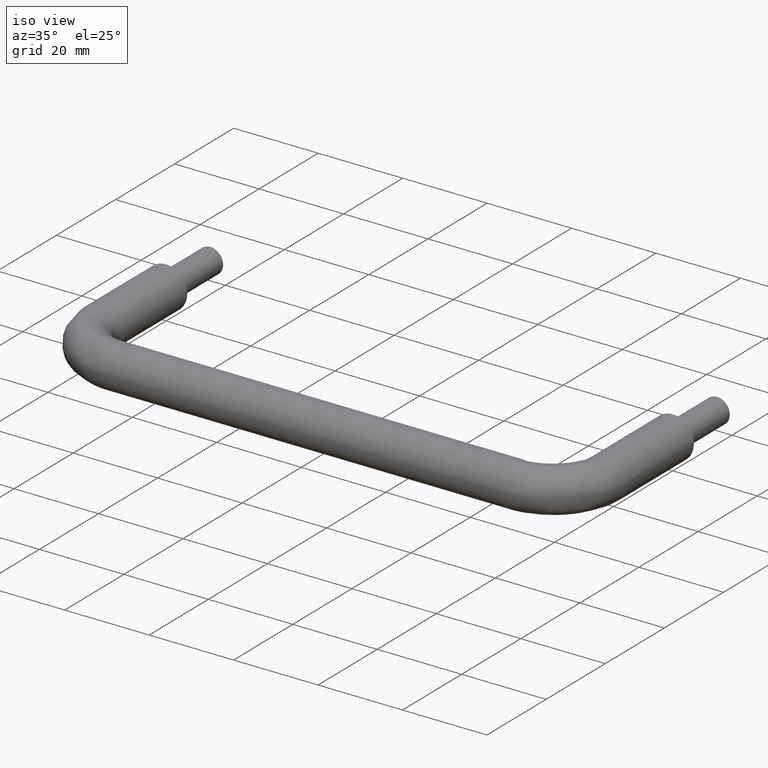
[diagram: clean part render]
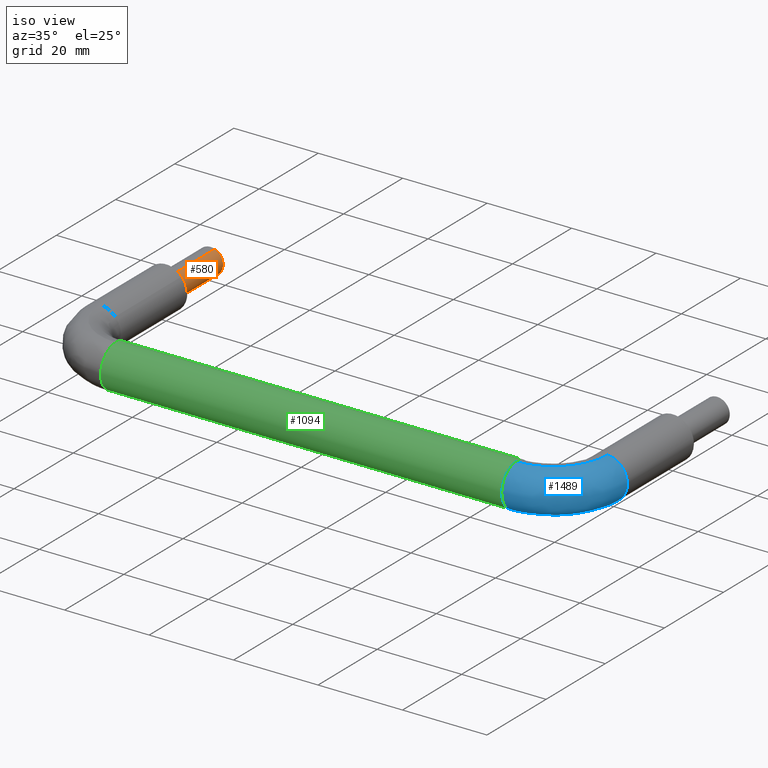
[diagram: same view with three faces highlighted in distinct colors, each labeled with its STEP entity id]
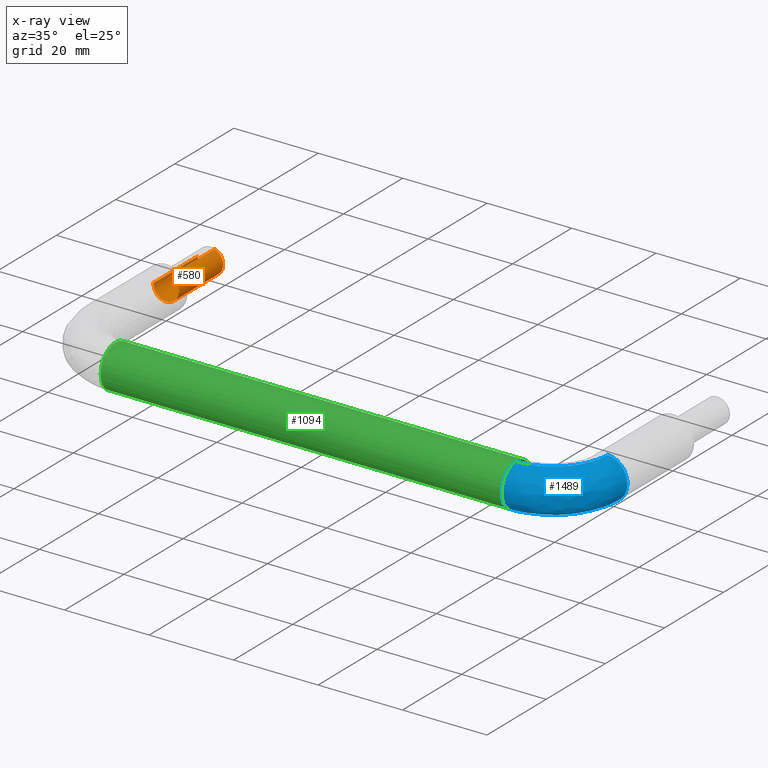
[diagram: x-ray of the same camera — body ghosted, the three highlighted faces saturated]
A machine part, iso view with three faces highlighted in distinct colors.
The next image is the same camera in x-ray (body ghosted, the three faces saturated) — at least one of them is partly hidden behind the body in this view.
Their STEP definitions:

[orange] entity #580 — the highlighted face is a freeform B-spline surface patch.
#398=CARTESIAN_POINT('',(1.054853923298531,15.0,2.808430736283467));
#399=VERTEX_POINT('',#398);
#415=CARTESIAN_POINT('',(-2.994404395329254,14.999999999763631,0.183145619499751));
#416=VERTEX_POINT('',#415);
#430=CARTESIAN_POINT('',(-2.994404395233033,2.775558E-017,0.183145619137042));
#431=VERTEX_POINT('',#430);
#432=CARTESIAN_POINT('',(-2.994404395329254,14.999999999763631,0.183145619499751));
#433=CARTESIAN_POINT('',(-2.994404395233033,2.775558E-017,0.183145619137042));
#434=QUASI_UNIFORM_CURVE('',1,(#432,#433),.UNSPECIFIED.,.F.,.U.);
#435=EDGE_CURVE('',#416,#431,#434,.T.);
#452=CARTESIAN_POINT('',(1.054853923264645,3.062603E-017,2.808430736296195));
#453=VERTEX_POINT('',#452);
#467=CARTESIAN_POINT('',(1.054853923298531,15.0,2.808430736283467));
#468=CARTESIAN_POINT('',(1.054853923264645,3.062603E-017,2.808430736296195));
#469=QUASI_UNIFORM_CURVE('',1,(#467,#468),.UNSPECIFIED.,.F.,.U.);
#470=EDGE_CURVE('',#399,#453,#469,.T.);
#475=CARTESIAN_POINT('',(-2.994404395265600,15.375000000000000,0.183145618604571));
#476=CARTESIAN_POINT('',(-3.177550013870171,15.375000000000002,-2.811258776661029));
#477=CARTESIAN_POINT('',(-0.183145618604570,15.375000000000000,-2.994404395265600));
#478=CARTESIAN_POINT('',(2.811258776661029,15.375000000000002,-3.177550013870171));
#479=CARTESIAN_POINT('',(2.994404395265601,15.375000000000000,-0.183145618604571));
#480=CARTESIAN_POINT('',(3.129711668608025,15.375000000000005,2.029108745409197));
#481=CARTESIAN_POINT('',(1.054853923174717,15.375000000000007,2.808430736329971));
#482=CARTESIAN_POINT('',(-2.994404395265600,-0.384375000000000,0.183145618604571));
#483=CARTESIAN_POINT('',(-3.177550013870171,-0.384375000000000,-2.811258776661029));
#484=CARTESIAN_POINT('',(-0.183145618604570,-0.384375000000000,-2.994404395265600));
#485=CARTESIAN_POINT('',(2.811258776661029,-0.384375000000000,-3.177550013870171));
#486=CARTESIAN_POINT('',(2.994404395265601,-0.384375000000000,-0.183145618604571));
#487=CARTESIAN_POINT('',(3.129711668608025,-0.384375000000000,2.029108745409197));
#488=CARTESIAN_POINT('',(1.054853923174717,-0.384375000000000,2.808430736329971));
#496=(BOUNDED_SURFACE()B_SPLINE_SURFACE(2,1,((#475,#482),(#476,#483),(#477,#484),(#478,#485),(#479,#486),(#480,#487),(#481,#488)),.UNSPECIFIED.,.F.,.F.,.U.)B_SPLINE_SURFACE_WITH_KNOTS((3,2,2,3),(2,2),(0.0,4.970562748477140,9.941125496954280,13.917575695735991),(0.0,15.759375000000000),.UNSPECIFIED.)GEOMETRIC_REPRESENTATION_ITEM()RATIONAL_B_SPLINE_SURFACE(((1.0,1.0),(0.707106781186548,0.707106781186548),(1.0,1.0),(0.707106781186548,0.707106781186548),(1.0,1.0),(0.765685424949238,0.765685424949238),(0.906274169979695,0.906274169979695)))REPRESENTATION_ITEM('')SURFACE());
#497=CARTESIAN_POINT('',(2.979028579091030,14.999999999999440,-0.354102703974807));
#498=VERTEX_POINT('',#497);
#499=CARTESIAN_POINT('',(2.979028579091029,14.999999999999444,-0.354102703974807));
#500=CARTESIAN_POINT('',(3.000000000000000,15.000000000000002,-0.177672358960243));
#501=CARTESIAN_POINT('',(3.0,15.0,0.0));
#502=CARTESIAN_POINT('',(3.0,14.999999999999993,2.077828786887547));
#503=CARTESIAN_POINT('',(1.054853923298531,15.000000000000004,2.808430736283467));
#511=(BOUNDED_CURVE()B_SPLINE_CURVE(2,(#499,#500,#501,#502,#503),.UNSPECIFIED.,.F.,.U.)B_SPLINE_CURVE_WITH_KNOTS((3,2,3),(0.229562473515138,0.250000000000000,0.440284170884982),.UNSPECIFIED.)CURVE()GEOMETRIC_REPRESENTATION_ITEM()RATIONAL_B_SPLINE_CURVE((0.956026754186893,0.976055948333054,1.0,0.777068226800994,0.893499554618722))REPRESENTATION_ITEM(''));
#512=EDGE_CURVE('',#498,#399,#511,.T.);
#513=ORIENTED_EDGE('',*,*,#512,.T.);
#514=ORIENTED_EDGE('',*,*,#470,.T.);
#515=CARTESIAN_POINT('',(6.123032E-016,0.0,-3.0));
#516=VERTEX_POINT('',#515);
#517=CARTESIAN_POINT('',(6.123032E-016,0.0,-3.0));
#518=CARTESIAN_POINT('',(3.0,0.0,-3.0));
#519=CARTESIAN_POINT('',(3.0,0.0,0.0));
#520=CARTESIAN_POINT('',(3.0,0.0,2.077828786941114));
#521=CARTESIAN_POINT('',(1.054853923264645,3.062603E-017,2.808430736296194));
#529=(BOUNDED_CURVE()B_SPLINE_CURVE(2,(#517,#518,#519,#520,#521),.UNSPECIFIED.,.F.,.U.)B_SPLINE_CURVE_WITH_KNOTS((3,2,3),(0.0,0.250000000000000,0.440284170888794),.UNSPECIFIED.)CURVE()GEOMETRIC_REPRESENTATION_ITEM()RATIONAL_B_SPLINE_CURVE((1.0,0.707106781186548,1.0,0.777068226796528,0.893499554623387))REPRESENTATION_ITEM(''));
#530=EDGE_CURVE('',#516,#453,#529,.T.);
#531=ORIENTED_EDGE('',*,*,#530,.F.);
#532=CARTESIAN_POINT('',(-2.994404395233033,2.775558E-017,0.183145619137042));
#533=CARTESIAN_POINT('',(-3.0,0.0,0.091658290429731));
#534=CARTESIAN_POINT('',(-3.0,0.0,0.0));
#535=CARTESIAN_POINT('',(-2.999999999999999,0.0,-3.0));
#536=CARTESIAN_POINT('',(6.123032E-016,0.0,-3.0));
#544=(BOUNDED_CURVE()B_SPLINE_CURVE(2,(#532,#533,#534,#535,#536),.UNSPECIFIED.,.F.,.U.)B_SPLINE_CURVE_WITH_KNOTS((3,2,3),(0.739332962180603,0.750000000000000,1.0),.UNSPECIFIED.)CURVE()GEOMETRIC_REPRESENTATION_ITEM()RATIONAL_B_SPLINE_CURVE((0.976072041541684,0.987502787831488,1.0,0.707106781186548,1.0))REPRESENTATION_ITEM(''));
#545=EDGE_CURVE('',#431,#516,#544,.T.);
#546=ORIENTED_EDGE('',*,*,#545,.F.);
#547=ORIENTED_EDGE('',*,*,#435,.F.);
#548=CARTESIAN_POINT('',(6.123032E-016,15.0,-3.0));
#549=VERTEX_POINT('',#548);
#550=CARTESIAN_POINT('',(-2.994404395329254,14.999999999763631,0.183145619499751));
#551=CARTESIAN_POINT('',(-3.000000000000000,15.000000000000004,0.091658291676676));
#552=CARTESIAN_POINT('',(-3.0,15.0,0.0));
#553=CARTESIAN_POINT('',(-2.999999999999999,14.999999999999995,-3.0));
#554=CARTESIAN_POINT('',(6.123032E-016,15.0,-3.0));
#562=(BOUNDED_CURVE()B_SPLINE_CURVE(2,(#550,#551,#552,#553,#554),.UNSPECIFIED.,.F.,.U.)B_SPLINE_CURVE_WITH_KNOTS((3,2,3),(0.739332962037299,0.750000000000000,1.0),.UNSPECIFIED.)CURVE()GEOMETRIC_REPRESENTATION_ITEM()RATIONAL_B_SPLINE_CURVE((0.976072041234557,0.987502787663597,1.0,0.707106781186548,1.0))REPRESENTATION_ITEM(''));
#563=EDGE_CURVE('',#416,#549,#562,.T.);
#564=ORIENTED_EDGE('',*,*,#563,.T.);
#565=CARTESIAN_POINT('',(6.123032E-016,15.0,-3.0));
#566=CARTESIAN_POINT('',(2.664523577846058,15.000000000000004,-2.999999999999999));
#567=CARTESIAN_POINT('',(2.979028579091030,14.999999999999437,-0.354102703974808));
#575=(BOUNDED_CURVE()B_SPLINE_CURVE(2,(#565,#566,#567),.UNSPECIFIED.,.F.,.U.)B_SPLINE_CURVE_WITH_KNOTS((3,3),(0.0,0.229562473515138),.UNSPECIFIED.)CURVE()GEOMETRIC_REPRESENTATION_ITEM()RATIONAL_B_SPLINE_CURVE((1.0,0.731050832853494,0.956026754186893))REPRESENTATION_ITEM(''));
#576=EDGE_CURVE('',#549,#498,#575,.T.);
#577=ORIENTED_EDGE('',*,*,#576,.T.);
#578=EDGE_LOOP('',(#513,#514,#531,#546,#547,#564,#577));
#579=FACE_OUTER_BOUND('',#578,.T.);
#580=ADVANCED_FACE('',(#579),#496,.T.);

[blue] entity #1489 — the highlighted face is a freeform B-spline surface patch.
#726=CARTESIAN_POINT('',(123.294846396518910,-22.499999999999961,-3.760849268894289));
#727=VERTEX_POINT('',#726);
#728=CARTESIAN_POINT('',(119.937169799793200,-22.500000000606040,-4.999605221009151));
#729=VERTEX_POINT('',#728);
#730=CARTESIAN_POINT('',(123.294846396518930,-22.499999999999957,-3.760849268894289));
#731=CARTESIAN_POINT('',(121.880437783707560,-22.499999999999996,-5.0));
#732=CARTESIAN_POINT('',(120.0,-22.500000000000000,-5.0));
#733=CARTESIAN_POINT('',(119.968583659250430,-22.500000000000000,-5.000000000000001));
#734=CARTESIAN_POINT('',(119.937169799793270,-22.500000000606033,-4.999605221009151));
#742=(BOUNDED_CURVE()B_SPLINE_CURVE(2,(#730,#731,#732,#733,#734),.UNSPECIFIED.,.F.,.U.)B_SPLINE_CURVE_WITH_KNOTS((3,2,3),(0.134954778888341,0.250000000000000,0.252215704133851),.UNSPECIFIED.)CURVE()GEOMETRIC_REPRESENTATION_ITEM()RATIONAL_B_SPLINE_CURVE((0.854482191287481,0.865216139518003,1.0,0.997404141137193,0.994854295516091))REPRESENTATION_ITEM(''));
#743=EDGE_CURVE('',#727,#729,#742,.T.);
#844=CARTESIAN_POINT('',(125.0,-22.500000000000000,0.0));
#845=VERTEX_POINT('',#844);
#846=CARTESIAN_POINT('',(125.0,-22.500000000000000,0.0));
#847=CARTESIAN_POINT('',(125.000000000000010,-22.500000000000000,-2.266979452731507));
#848=CARTESIAN_POINT('',(123.294846396518930,-22.499999999999957,-3.760849268894289));
#856=(BOUNDED_CURVE()B_SPLINE_CURVE(2,(#846,#847,#848),.UNSPECIFIED.,.F.,.U.)B_SPLINE_CURVE_WITH_KNOTS((3,3),(0.0,0.134954778888341),.UNSPECIFIED.)CURVE()GEOMETRIC_REPRESENTATION_ITEM()RATIONAL_B_SPLINE_CURVE((1.0,0.841890641668545,0.854482191287481))REPRESENTATION_ITEM(''));
#857=EDGE_CURVE('',#845,#727,#856,.T.);
#891=CARTESIAN_POINT('',(120.348666259219400,-22.500000000209219,4.987828369108341));
#892=VERTEX_POINT('',#891);
#908=CARTESIAN_POINT('',(120.348666259219370,-22.500000000209212,4.987828369108342));
#909=CARTESIAN_POINT('',(124.999999999999990,-22.500000000000000,4.662684233817658));
#910=CARTESIAN_POINT('',(125.0,-22.500000000000000,0.0));
#918=(BOUNDED_CURVE()B_SPLINE_CURVE(2,(#908,#909,#910),.UNSPECIFIED.,.F.,.U.)B_SPLINE_CURVE_WITH_KNOTS((3,3),(0.762166313557421,1.0),.UNSPECIFIED.)CURVE()GEOMETRIC_REPRESENTATION_ITEM()RATIONAL_B_SPLINE_CURVE((0.972879876191303,0.721360504142255,1.0))REPRESENTATION_ITEM(''));
#919=EDGE_CURVE('',#892,#845,#918,.T.);
#952=CARTESIAN_POINT('',(107.500000001461900,-35.348666263710392,4.987828368794403));
#953=VERTEX_POINT('',#952);
#1047=CARTESIAN_POINT('',(107.500000001026810,-34.937169798926647,-4.999605220998261));
#1048=VERTEX_POINT('',#1047);
#1062=CARTESIAN_POINT('',(107.500000000000000,-40.0,0.0));
#1063=VERTEX_POINT('',#1062);
#1064=CARTESIAN_POINT('',(107.500000000000000,-40.0,0.0));
#1065=CARTESIAN_POINT('',(107.500000000000000,-39.999999999999993,-5.000000000000001));
#1066=CARTESIAN_POINT('',(107.500000000000000,-35.0,-5.0));
#1067=CARTESIAN_POINT('',(107.500000000000040,-34.968583658383764,-5.000000000000001));
#1068=CARTESIAN_POINT('',(107.500000001026790,-34.937169798926654,-4.999605220998261));
#1076=(BOUNDED_CURVE()B_SPLINE_CURVE(2,(#1064,#1065,#1066,#1067,#1068),.UNSPECIFIED.,.F.,.U.)B_SPLINE_CURVE_WITH_KNOTS((3,2,3),(0.0,0.250000000000000,0.252215704194816),.UNSPECIFIED.)CURVE()GEOMETRIC_REPRESENTATION_ITEM()RATIONAL_B_SPLINE_CURVE((1.0,0.707106781186548,1.0,0.997404141065767,0.994854295375772))REPRESENTATION_ITEM(''));
#1077=EDGE_CURVE('',#1063,#1048,#1076,.T.);
#1079=CARTESIAN_POINT('',(107.500000001461870,-35.348666263710385,4.987828368794403));
#1080=CARTESIAN_POINT('',(107.499999999999990,-40.000000000000007,4.662684225400630));
#1081=CARTESIAN_POINT('',(107.500000000000000,-40.0,0.0));
#1089=(BOUNDED_CURVE()B_SPLINE_CURVE(2,(#1079,#1080,#1081),.UNSPECIFIED.,.F.,.U.)B_SPLINE_CURVE_WITH_KNOTS((3,3),(0.762166313867126,1.0),.UNSPECIFIED.)CURVE()GEOMETRIC_REPRESENTATION_ITEM()RATIONAL_B_SPLINE_CURVE((0.972879875536250,0.721360504505097,1.0))REPRESENTATION_ITEM(''));
#1090=EDGE_CURVE('',#953,#1063,#1089,.T.);
#1418=CARTESIAN_POINT('',(107.500000001026780,-34.937169798926647,-4.999605220998261));
#1419=CARTESIAN_POINT('',(119.937169799371160,-34.937169798529624,-4.999605221019079));
#1420=CARTESIAN_POINT('',(119.937169799793220,-22.500000000606036,-4.999605221009150));
#1428=(BOUNDED_CURVE()B_SPLINE_CURVE(2,(#1418,#1419,#1420),.UNSPECIFIED.,.F.,.U.)B_SPLINE_CURVE_WITH_KNOTS((3,3),(-1.734750791486827,-0.265249208442865),.UNSPECIFIED.)CURVE()GEOMETRIC_REPRESENTATION_ITEM()RATIONAL_B_SPLINE_CURVE((0.889029723515637,0.628638946265650,0.889029723540554))REPRESENTATION_ITEM(''));
#1429=EDGE_CURVE('',#1048,#729,#1428,.T.);
#1435=CARTESIAN_POINT('',(107.500000001461860,-35.348666263710378,4.987828368794403));
#1436=CARTESIAN_POINT('',(120.348666257458760,-35.348666254953478,4.987828369202159));
#1437=CARTESIAN_POINT('',(120.348666259219370,-22.500000000209216,4.987828369108343));
#1445=(BOUNDED_CURVE()B_SPLINE_CURVE(2,(#1435,#1436,#1437),.UNSPECIFIED.,.F.,.U.)B_SPLINE_CURVE_WITH_KNOTS((3,3),(-1.734750791421955,-0.265249208375438),.UNSPECIFIED.)CURVE()GEOMETRIC_REPRESENTATION_ITEM()RATIONAL_B_SPLINE_CURVE((0.869031711793350,0.614498216579967,0.869031711863537))REPRESENTATION_ITEM(''));
#1446=EDGE_CURVE('',#953,#892,#1445,.T.);
#1451=CARTESIAN_POINT('',(106.640100083998020,-34.836126257264425,-4.998711581351103));
#1452=CARTESIAN_POINT('',(120.824889116633360,-35.824888745852469,-4.998711581351105));
#1453=CARTESIAN_POINT('',(119.836126233336630,-21.640099740730648,-4.998711581351103));
#1454=CARTESIAN_POINT('',(106.637635002415640,-34.871490323557559,-4.999157081099925));
#1455=CARTESIAN_POINT('',(120.863087676881700,-35.863087305037901,-4.999157081099926));
#1456=CARTESIAN_POINT('',(119.871490299561160,-21.637634658164199,-4.999157081099924));
#1457=CARTESIAN_POINT('',(106.287497276693700,-39.894566976500130,-5.062435420435841));
#1458=CARTESIAN_POINT('',(126.288773019992930,-41.288772497173028,-5.062435420435840));
#1459=CARTESIAN_POINT('',(124.894566942760820,-21.287496792669234,-5.062435420435842));
#1460=CARTESIAN_POINT('',(106.283128246996160,-39.957245087019295,-0.062830199416764));
#1461=CARTESIAN_POINT('',(126.356474894575830,-41.356474369872032,-0.062830199416764));
#1462=CARTESIAN_POINT('',(124.957245053158370,-21.283127761227600,-0.062830199416764));
#1463=CARTESIAN_POINT('',(106.279002338772270,-40.016435376294552,4.658564189198486));
#1464=CARTESIAN_POINT('',(126.420409392725900,-41.420408866243044,4.658564189198486));
#1465=CARTESIAN_POINT('',(125.016435342318860,-21.279001851356654,4.658564189198486));
#1466=CARTESIAN_POINT('',(106.609048624357880,-35.281590571732529,4.990349160761997));
#1467=CARTESIAN_POINT('',(121.306058202610320,-36.306057818440344,4.990349160761996));
#1468=CARTESIAN_POINT('',(120.281590546940710,-21.609048268694952,4.990349160761997));
#1469=CARTESIAN_POINT('',(106.611542426592110,-35.245814478899511,4.992856100362599));
#1470=CARTESIAN_POINT('',(121.267414591148750,-36.267414208054092,4.992856100362599));
#1471=CARTESIAN_POINT('',(120.245814454177080,-21.611542071924685,4.992856100362599));
#1479=(BOUNDED_SURFACE()B_SPLINE_SURFACE(2,2,((#1451,#1454,#1457,#1460,#1463,#1466,#1469),(#1452,#1455,#1458,#1461,#1464,#1467,#1470),(#1453,#1456,#1459,#1462,#1465,#1468,#1471)),.UNSPECIFIED.,.F.,.F.,.U.)B_SPLINE_SURFACE_WITH_KNOTS((3,3),(3,1,2,1,3),(0.0,31.890824110817530),(0.0,0.083810702488793,8.368081949950689,16.320982347514111,16.404008296420759),.UNSPECIFIED.)GEOMETRIC_REPRESENTATION_ITEM()RATIONAL_B_SPLINE_SURFACE(((0.921772624035560,0.919057359638246,0.647951709431553,0.916342095240933,0.658687324863928,0.898204366664749,0.900679019718726),(0.604890217368078,0.603108393056230,0.425202094466791,0.601326568744382,0.432247073437895,0.589424138258892,0.591048067397921),(0.921772635721267,0.919057371289531,0.647951717645915,0.916342106857795,0.658687333214390,0.898204378051672,0.900679031137021)))REPRESENTATION_ITEM('')SURFACE());
#1480=ORIENTED_EDGE('',*,*,#919,.F.);
#1481=ORIENTED_EDGE('',*,*,#1446,.F.);
#1482=ORIENTED_EDGE('',*,*,#1090,.T.);
#1483=ORIENTED_EDGE('',*,*,#1077,.T.);
#1484=ORIENTED_EDGE('',*,*,#1429,.T.);
#1485=ORIENTED_EDGE('',*,*,#743,.F.);
#1486=ORIENTED_EDGE('',*,*,#857,.F.);
#1487=EDGE_LOOP('',(#1480,#1481,#1482,#1483,#1484,#1485,#1486));
#1488=FACE_OUTER_BOUND('',#1487,.T.);
#1489=ADVANCED_FACE('',(#1488),#1479,.T.);

[green] entity #1094 — the highlighted face is a freeform B-spline surface patch.
#924=CARTESIAN_POINT('',(10.124999941214483,-30.521972536820851,2.224245948408881));
#925=CARTESIAN_POINT('',(10.124999941214483,-30.856101220587441,2.896940181352409));
#926=CARTESIAN_POINT('',(10.124999941214480,-31.373128144938558,3.441772878468769));
#927=CARTESIAN_POINT('',(10.124999941214483,-34.814901023407330,7.068644733530205));
#928=CARTESIAN_POINT('',(10.124999941214480,-38.441772878468768,3.626871855061437));
#929=CARTESIAN_POINT('',(10.124999941214483,-42.068644733530206,0.185098976592668));
#930=CARTESIAN_POINT('',(10.124999941214480,-38.626871855061438,-3.441772878468769));
#931=CARTESIAN_POINT('',(10.124999941214483,-35.185098976592663,-7.068644733530205));
#932=CARTESIAN_POINT('',(10.124999941214480,-31.558227121531232,-3.626871855061437));
#933=CARTESIAN_POINT('',(109.934375002968050,-30.521972536820840,2.224245948408881));
#934=CARTESIAN_POINT('',(109.934375002968100,-30.856101220587430,2.896940181352409));
#935=CARTESIAN_POINT('',(109.934375002968100,-31.373128144938558,3.441772878468769));
#936=CARTESIAN_POINT('',(109.934375002968050,-34.814901023407316,7.068644733530205));
#937=CARTESIAN_POINT('',(109.934375002968100,-38.441772878468761,3.626871855061437));
#938=CARTESIAN_POINT('',(109.934375002968050,-42.068644733530206,0.185098976592668));
#939=CARTESIAN_POINT('',(109.934375002968100,-38.626871855061431,-3.441772878468769));
#940=CARTESIAN_POINT('',(109.934375002968050,-35.185098976592663,-7.068644733530205));
#941=CARTESIAN_POINT('',(109.934375002968100,-31.558227121531232,-3.626871855061437));
#949=(BOUNDED_SURFACE()B_SPLINE_SURFACE(2,1,((#924,#933),(#925,#934),(#926,#935),(#927,#936),(#928,#937),(#929,#938),(#930,#939),(#931,#940),(#932,#941)),.UNSPECIFIED.,.F.,.F.,.U.)B_SPLINE_SURFACE_WITH_KNOTS((3,2,2,2,3),(2,2),(0.0,1.656854249492380,9.941125496954278,18.225396744416180,26.509667991878079),(0.0,99.809375061753585),.UNSPECIFIED.)GEOMETRIC_REPRESENTATION_ITEM()RATIONAL_B_SPLINE_SURFACE(((0.906274169979695,0.906274169979695),(0.941421356237309,0.941421356237309),(1.0,1.0),(0.707106781186548,0.707106781186548),(1.0,1.0),(0.707106781186548,0.707106781186548),(1.0,1.0),(0.707106781186548,0.707106781186548),(1.0,1.0)))REPRESENTATION_ITEM('')SURFACE());
#950=CARTESIAN_POINT('',(107.500000000000000,-30.521972536837890,2.224245948443190));
#951=VERTEX_POINT('',#950);
#952=CARTESIAN_POINT('',(107.500000001461900,-35.348666263710392,4.987828368794403));
#953=VERTEX_POINT('',#952);
#954=CARTESIAN_POINT('',(107.500000000000000,-30.521972536837890,2.224245948443190));
#955=CARTESIAN_POINT('',(107.500000000000000,-31.900695591566350,4.999999999999998));
#956=CARTESIAN_POINT('',(107.500000000000000,-35.0,5.0));
#957=CARTESIAN_POINT('',(107.499999999999960,-35.174545585228110,5.0));
#958=CARTESIAN_POINT('',(107.500000001461910,-35.348666263710385,4.987828368794403));
#966=(BOUNDED_CURVE()B_SPLINE_CURVE(2,(#954,#955,#956,#957,#958),.UNSPECIFIED.,.F.,.U.)B_SPLINE_CURVE_WITH_KNOTS((3,2,3),(0.575619190624772,0.750000000000000,0.762166313867127),.UNSPECIFIED.)CURVE()GEOMETRIC_REPRESENTATION_ITEM()RATIONAL_B_SPLINE_CURVE((0.876408099966359,0.795700173771178,1.0,0.985746276681450,0.972879875536249))REPRESENTATION_ITEM(''));
#967=EDGE_CURVE('',#951,#953,#966,.T.);
#968=ORIENTED_EDGE('',*,*,#967,.F.);
#969=CARTESIAN_POINT('',(12.499999999949400,-30.521972536863860,2.224245948429610));
#970=VERTEX_POINT('',#969);
#971=CARTESIAN_POINT('',(12.499999999949400,-30.521972536863860,2.224245948429610));
#972=CARTESIAN_POINT('',(107.500000000000000,-30.521972536837890,2.224245948443190));
#973=QUASI_UNIFORM_CURVE('',1,(#971,#972),.UNSPECIFIED.,.F.,.U.);
#974=EDGE_CURVE('',#970,#951,#973,.T.);
#975=ORIENTED_EDGE('',*,*,#974,.F.);
#976=CARTESIAN_POINT('',(12.499999999521330,-34.937169799960493,4.999605221011253));
#977=VERTEX_POINT('',#976);
#978=CARTESIAN_POINT('',(12.499999999949399,-30.521972536863856,2.224245948429611));
#979=CARTESIAN_POINT('',(12.499999999817589,-31.881425326504711,4.961203581291151));
#980=CARTESIAN_POINT('',(12.499999999521334,-34.937169799960486,4.999605221011253));
#988=(BOUNDED_CURVE()B_SPLINE_CURVE(2,(#978,#979,#980),.UNSPECIFIED.,.F.,.U.)B_SPLINE_CURVE_WITH_KNOTS((3,3),(0.575619190623804,0.747784295877918),.UNSPECIFIED.)CURVE()GEOMETRIC_REPRESENTATION_ITEM()RATIONAL_B_SPLINE_CURVE((0.876408099967255,0.796725658657972,0.994854295543177))REPRESENTATION_ITEM(''));
#989=EDGE_CURVE('',#970,#977,#988,.T.);
#990=ORIENTED_EDGE('',*,*,#989,.T.);
#991=CARTESIAN_POINT('',(12.500000000000000,-40.0,0.0));
#992=VERTEX_POINT('',#991);
#993=CARTESIAN_POINT('',(12.499999999521329,-34.937169799960486,4.999605221011254));
#994=CARTESIAN_POINT('',(12.500000000000002,-34.968583659417725,5.0));
#995=CARTESIAN_POINT('',(12.500000000000000,-35.0,5.0));
#996=CARTESIAN_POINT('',(12.500000000000000,-39.999999999999993,5.000000000000001));
#997=CARTESIAN_POINT('',(12.500000000000000,-40.0,0.0));
#1005=(BOUNDED_CURVE()B_SPLINE_CURVE(2,(#993,#994,#995,#996,#997),.UNSPECIFIED.,.F.,.U.)B_SPLINE_CURVE_WITH_KNOTS((3,2,3),(0.747784295877917,0.750000000000000,1.0),.UNSPECIFIED.)CURVE()GEOMETRIC_REPRESENTATION_ITEM()RATIONAL_B_SPLINE_CURVE((0.994854295543175,0.997404141150979,1.0,0.707106781186548,1.0))REPRESENTATION_ITEM(''));
#1006=EDGE_CURVE('',#977,#992,#1005,.T.);
#1007=ORIENTED_EDGE('',*,*,#1006,.T.);
#1008=CARTESIAN_POINT('',(12.499999942683930,-35.348666308206170,-4.987828365683995));
#1009=VERTEX_POINT('',#1008);
#1010=CARTESIAN_POINT('',(12.500000000000000,-40.0,0.0));
#1011=CARTESIAN_POINT('',(12.500000000000000,-40.0,-4.662684142007196));
#1012=CARTESIAN_POINT('',(12.499999942683930,-35.348666308206170,-4.987828365683995));
#1020=(BOUNDED_CURVE()B_SPLINE_CURVE(2,(#1010,#1011,#1012),.UNSPECIFIED.,.F.,.U.)B_SPLINE_CURVE_WITH_KNOTS((3,3),(0.0,0.237833683064406),.UNSPECIFIED.)CURVE()GEOMETRIC_REPRESENTATION_ITEM()RATIONAL_B_SPLINE_CURVE((1.0,0.721360508100031,0.972879869046176))REPRESENTATION_ITEM(''));
#1021=EDGE_CURVE('',#992,#1009,#1020,.T.);
#1022=ORIENTED_EDGE('',*,*,#1021,.T.);
#1023=CARTESIAN_POINT('',(12.500000000000000,-31.558228442135000,-3.626873108266699));
#1024=VERTEX_POINT('',#1023);
#1025=CARTESIAN_POINT('',(12.499999942683939,-35.348666308206170,-4.987828365683995));
#1026=CARTESIAN_POINT('',(12.500000000000002,-35.174545629886815,-4.999999999999999));
#1027=CARTESIAN_POINT('',(12.500000000000000,-35.0,-5.0));
#1028=CARTESIAN_POINT('',(12.500000000000005,-33.005203325312003,-5.0));
#1029=CARTESIAN_POINT('',(12.500000000000000,-31.558228442135000,-3.626873108266699));
#1037=(BOUNDED_CURVE()B_SPLINE_CURVE(2,(#1025,#1026,#1027,#1028,#1029),.UNSPECIFIED.,.F.,.U.)B_SPLINE_CURVE_WITH_KNOTS((3,2,3),(0.237833683064406,0.250000000000000,0.371049471708747),.UNSPECIFIED.)CURVE()GEOMETRIC_REPRESENTATION_ITEM()RATIONAL_B_SPLINE_CURVE((0.972879869046176,0.985746273086517,1.0,0.858181722382228,0.853699665438662))REPRESENTATION_ITEM(''));
#1038=EDGE_CURVE('',#1009,#1024,#1037,.T.);
#1039=ORIENTED_EDGE('',*,*,#1038,.T.);
#1040=CARTESIAN_POINT('',(107.500000000324110,-31.558227913072550,-3.626872605960986));
#1041=VERTEX_POINT('',#1040);
#1042=CARTESIAN_POINT('',(12.500000000000000,-31.558228442135000,-3.626873108266699));
#1043=CARTESIAN_POINT('',(107.500000000324110,-31.558227913072550,-3.626872605960986));
#1044=QUASI_UNIFORM_CURVE('',1,(#1042,#1043),.UNSPECIFIED.,.F.,.U.);
#1045=EDGE_CURVE('',#1024,#1041,#1044,.T.);
#1046=ORIENTED_EDGE('',*,*,#1045,.T.);
#1047=CARTESIAN_POINT('',(107.500000001026810,-34.937169798926647,-4.999605220998261));
#1048=VERTEX_POINT('',#1047);
#1049=CARTESIAN_POINT('',(107.500000001026790,-34.937169798926654,-4.999605220998261));
#1050=CARTESIAN_POINT('',(107.500000000619520,-32.978853110185419,-4.974994990965148));
#1051=CARTESIAN_POINT('',(107.500000000324090,-31.558227913072557,-3.626872605960986));
#1059=(BOUNDED_CURVE()B_SPLINE_CURVE(2,(#1049,#1050,#1051),.UNSPECIFIED.,.F.,.U.)B_SPLINE_CURVE_WITH_KNOTS((3,3),(0.252215704194816,0.371049493739702),.UNSPECIFIED.)CURVE()GEOMETRIC_REPRESENTATION_ITEM()RATIONAL_B_SPLINE_CURVE((0.994854295375772,0.858099656915595,0.853699663807202))REPRESENTATION_ITEM(''));
#1060=EDGE_CURVE('',#1048,#1041,#1059,.T.);
#1061=ORIENTED_EDGE('',*,*,#1060,.F.);
#1062=CARTESIAN_POINT('',(107.500000000000000,-40.0,0.0));
#1063=VERTEX_POINT('',#1062);
#1064=CARTESIAN_POINT('',(107.500000000000000,-40.0,0.0));
#1065=CARTESIAN_POINT('',(107.500000000000000,-39.999999999999993,-5.000000000000001));
#1066=CARTESIAN_POINT('',(107.500000000000000,-35.0,-5.0));
#1067=CARTESIAN_POINT('',(107.500000000000040,-34.968583658383764,-5.000000000000001));
#1068=CARTESIAN_POINT('',(107.500000001026790,-34.937169798926654,-4.999605220998261));
#1076=(BOUNDED_CURVE()B_SPLINE_CURVE(2,(#1064,#1065,#1066,#1067,#1068),.UNSPECIFIED.,.F.,.U.)B_SPLINE_CURVE_WITH_KNOTS((3,2,3),(0.0,0.250000000000000,0.252215704194816),.UNSPECIFIED.)CURVE()GEOMETRIC_REPRESENTATION_ITEM()RATIONAL_B_SPLINE_CURVE((1.0,0.707106781186548,1.0,0.997404141065767,0.994854295375772))REPRESENTATION_ITEM(''));
#1077=EDGE_CURVE('',#1063,#1048,#1076,.T.);
#1078=ORIENTED_EDGE('',*,*,#1077,.F.);
#1079=CARTESIAN_POINT('',(107.500000001461870,-35.348666263710385,4.987828368794403));
#1080=CARTESIAN_POINT('',(107.499999999999990,-40.000000000000007,4.662684225400630));
#1081=CARTESIAN_POINT('',(107.500000000000000,-40.0,0.0));
#1089=(BOUNDED_CURVE()B_SPLINE_CURVE(2,(#1079,#1080,#1081),.UNSPECIFIED.,.F.,.U.)B_SPLINE_CURVE_WITH_KNOTS((3,3),(0.762166313867126,1.0),.UNSPECIFIED.)CURVE()GEOMETRIC_REPRESENTATION_ITEM()RATIONAL_B_SPLINE_CURVE((0.972879875536250,0.721360504505097,1.0))REPRESENTATION_ITEM(''));
#1090=EDGE_CURVE('',#953,#1063,#1089,.T.);
#1091=ORIENTED_EDGE('',*,*,#1090,.F.);
#1092=EDGE_LOOP('',(#968,#975,#990,#1007,#1022,#1039,#1046,#1061,#1078,#1091));
#1093=FACE_OUTER_BOUND('',#1092,.T.);
#1094=ADVANCED_FACE('',(#1093),#949,.T.);